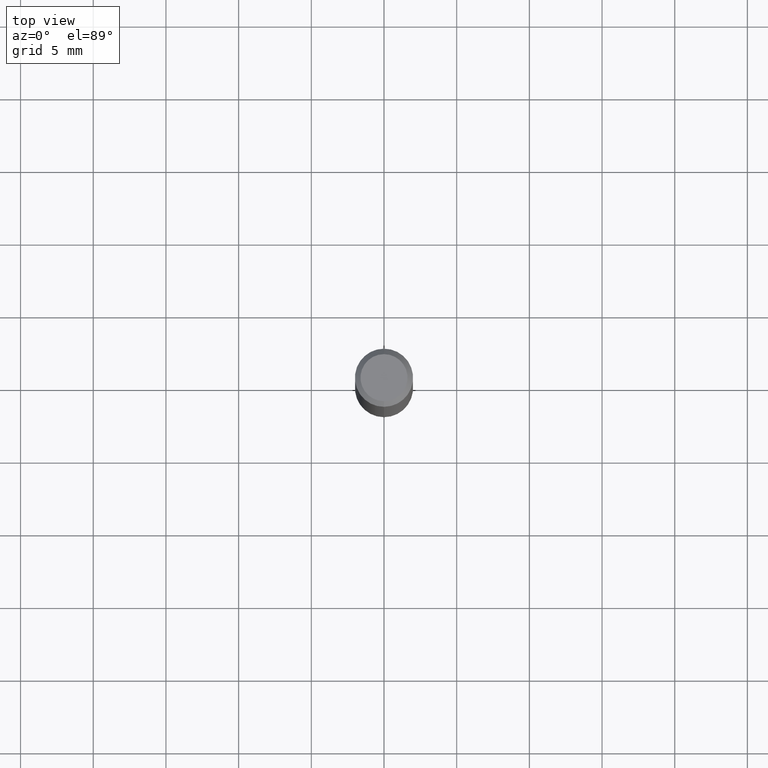
[diagram: clean part render]
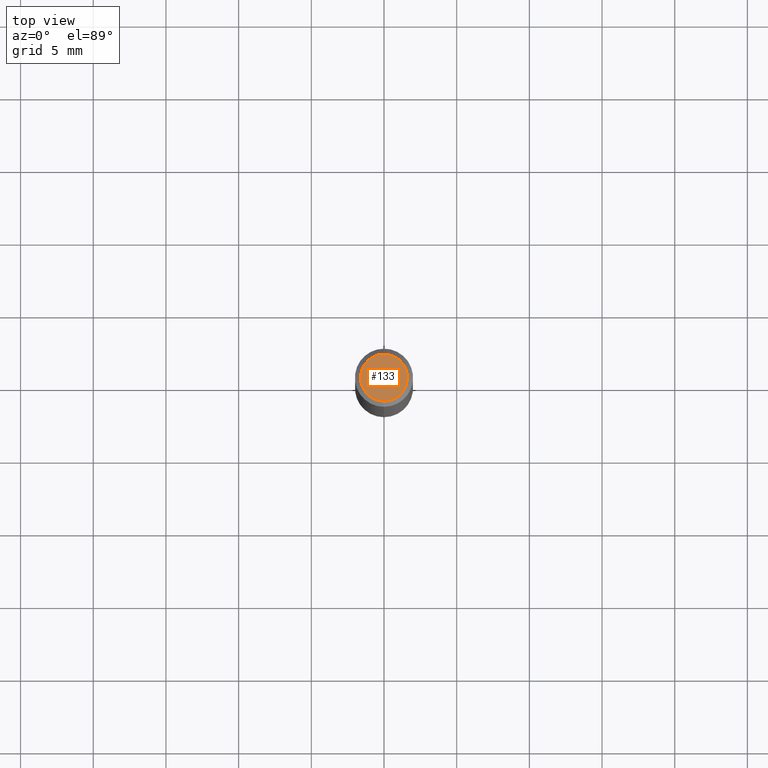
[diagram: same view with one face highlighted and labeled with its STEP entity id]
A machine part, top view. The second image highlights one B-rep face of the part: STEP entity #133.
In plain terms, the highlighted planar face has unit normal (0, -0, -1).
Its self-contained STEP definition (entity closure, byte-faithful):
#1 = CARTESIAN_POINT ( 'NONE',  ( -5.749253660339158173E-45, 8.208497746846743478E-31, 2.350994683723575538E-16 ) ) ;
#19 = ORIENTED_EDGE ( 'NONE', *, *, #227, .T. ) ;
#62 = EDGE_CURVE ( 'NONE', #448, #409, #113, .T. ) ;
#69 = DIRECTION ( 'NONE',  ( 6.982962677686265922E-15, 1.000000000000000000, -3.491499918598658860E-15 ) ) ;
#87 = CARTESIAN_POINT ( 'NONE',  ( -5.749253660339158173E-45, 8.208497746846743478E-31, 2.350994683723575538E-16 ) ) ;
#113 = CIRCLE ( 'NONE', #157, 0.06375000000000000111 ) ;
#120 = AXIS2_PLACEMENT_3D ( 'NONE', #260, #145, #69 ) ;
#133 = ADVANCED_FACE ( 'NONE', ( #424 ), #500, .F. ) ;
#145 = DIRECTION ( 'NONE',  ( 2.445455832011205166E-29, -3.491499918598658860E-15, -1.000000000000000000 ) ) ;
#157 = AXIS2_PLACEMENT_3D ( 'NONE', #87, #198, #323 ) ;
#192 = DIRECTION ( 'NONE',  ( -2.445455832011205727E-29, 3.491499918598658860E-15, 1.000000000000000000 ) ) ;
#198 = DIRECTION ( 'NONE',  ( -2.445455832011205727E-29, 3.491499918598658860E-15, 1.000000000000000000 ) ) ;
#205 = CARTESIAN_POINT ( 'NONE',  ( 4.975360907851465623E-16, 0.06375000000000000111, 1.251634856169306932E-17 ) ) ;
#227 = EDGE_CURVE ( 'NONE', #409, #448, #309, .T. ) ;
#260 = CARTESIAN_POINT ( 'NONE',  ( 4.451638707024993845E-16, 0.06375000000000000111, -1.050333856244857091E-16 ) ) ;
#265 = CARTESIAN_POINT ( 'NONE',  ( -4.888104823412213911E-16, -0.06375000000000000111, 4.576825881830220029E-16 ) ) ;
#274 = ORIENTED_EDGE ( 'NONE', *, *, #62, .T. ) ;
#309 = CIRCLE ( 'NONE', #381, 0.06375000000000000111 ) ;
#323 = DIRECTION ( 'NONE',  ( -6.982962677686264344E-15, -1.000000000000000000, 3.491499918598658071E-15 ) ) ;
#381 = AXIS2_PLACEMENT_3D ( 'NONE', #1, #192, #507 ) ;
#390 = EDGE_LOOP ( 'NONE', ( #19, #274 ) ) ;
#409 = VERTEX_POINT ( 'NONE', #205 ) ;
#424 = FACE_OUTER_BOUND ( 'NONE', #390, .T. ) ;
#448 = VERTEX_POINT ( 'NONE', #265 ) ;
#500 = PLANE ( 'NONE',  #120 ) ;
#507 = DIRECTION ( 'NONE',  ( -6.982962677686264344E-15, -1.000000000000000000, 3.491499918598658071E-15 ) ) ;